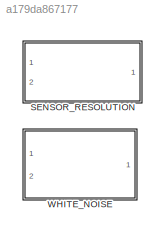
MODEL slx_a179da867177
KIND library
CONFIG AbsTol = auto
CONFIG EnableMultiTasking = off
CONFIG FixedStep = auto
CONFIG MaxStep = auto
CONFIG MinStep = auto
CONFIG RelTol = 1e-3
CONFIG SampleTimeConstraint = Unconstrained
CONFIG SolverName = VariableStepAuto
CONFIG StartTime = 0.0
CONFIG StopTime = 10.0
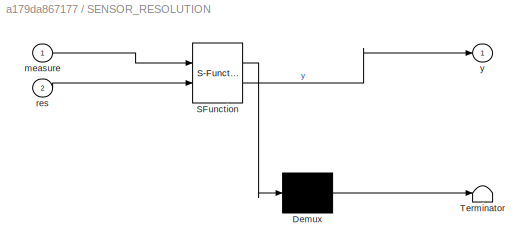
BLOCK [SubSystem] SENSOR_RESOLUTION
  ErrorFcn = Stateflow.Translate.translate
  PermitHierarchicalResolution = ExplicitOnly
  Ports = [2, 1]
  RequestExecContextInheritance = off
  SFBlockType = MATLAB Function
  TreatAsAtomicUnit = on
BLOCK [Demux] SENSOR_RESOLUTION/ Demux 
  Outputs = 1
  Ports = [1, 1]
BLOCK [S-Function] SENSOR_RESOLUTION/ SFunction 
  EnableBusSupport = off
  FunctionName = sf_sfun
  PortCounts = [2 2]
  Ports = [2, 2]
  SFcnIsStateOwnerBlock = off
  SFunctionDeploymentMode = off
  Tag = Stateflow S-Function 1
BLOCK [Terminator] SENSOR_RESOLUTION/ Terminator 
BLOCK [Inport] SENSOR_RESOLUTION/measure
BLOCK [Inport] SENSOR_RESOLUTION/res
  Port = 2
BLOCK [Outport] SENSOR_RESOLUTION/y
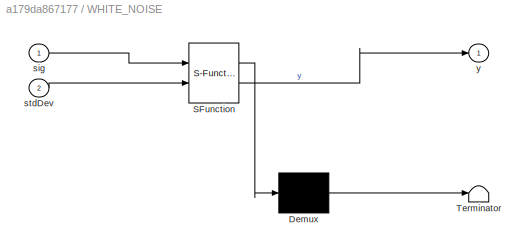
BLOCK [SubSystem] WHITE_NOISE
  ErrorFcn = Stateflow.Translate.translate
  PermitHierarchicalResolution = ExplicitOnly
  Ports = [2, 1]
  RequestExecContextInheritance = off
  SFBlockType = MATLAB Function
  TreatAsAtomicUnit = on
BLOCK [Demux] WHITE_NOISE/ Demux 
  Outputs = 1
  Ports = [1, 1]
BLOCK [S-Function] WHITE_NOISE/ SFunction 
  EnableBusSupport = off
  FunctionName = sf_sfun
  PortCounts = [2 2]
  Ports = [2, 2]
  SFcnIsStateOwnerBlock = off
  SFunctionDeploymentMode = off
  Tag = Stateflow S-Function 5
BLOCK [Terminator] WHITE_NOISE/ Terminator 
BLOCK [Inport] WHITE_NOISE/sig
BLOCK [Inport] WHITE_NOISE/stdDev
  Port = 2
BLOCK [Outport] WHITE_NOISE/y
CHART WHITE_NOISE states=1 transitions=1
  STATE_LABEL 'eML_blk_kernel()'
  STATE_LABEL 'SCRIPT:\nfunction y = fcn(sig,stdDev)\n\ny = sig + randn(size(stdDev)).*stdDev;\n'
CHART SENSOR_RESOLUTION states=1 transitions=1
  STATE_LABEL 'eML_blk_kernel()'
  STATE_LABEL 'SCRIPT:\nfunction y = fcn(measure,res)\n\ny = round(measure/res)*res;\n'
CHART  states=0 transitions=0
CHART  states=0 transitions=0
